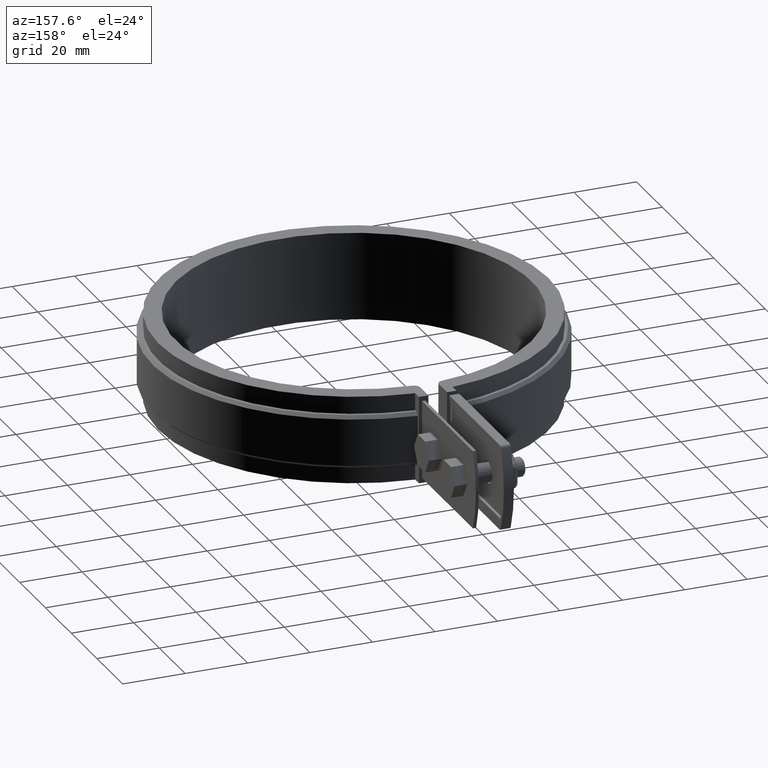
[diagram: clean part render]
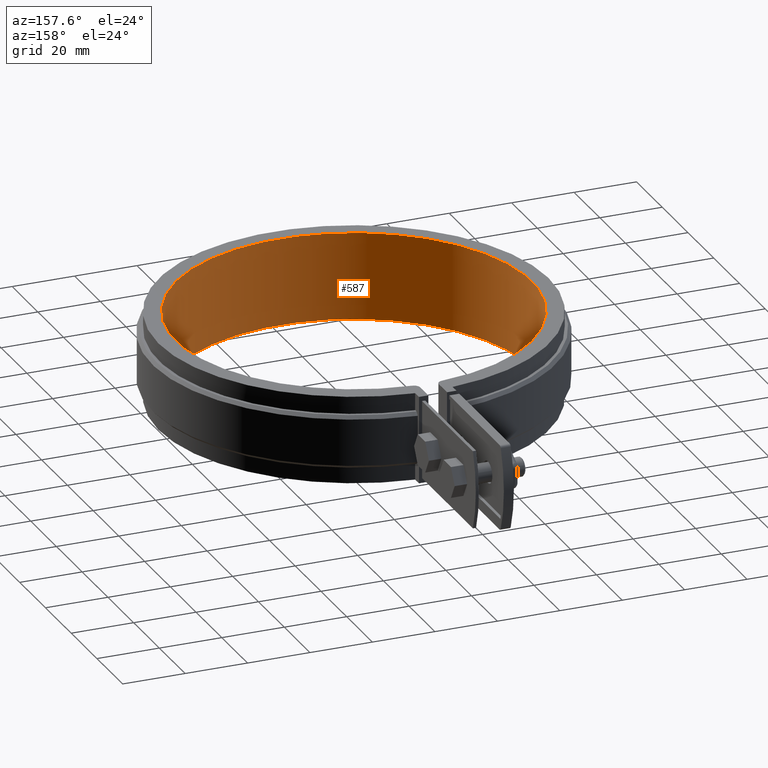
[diagram: same view with one face highlighted and labeled with its STEP entity id]
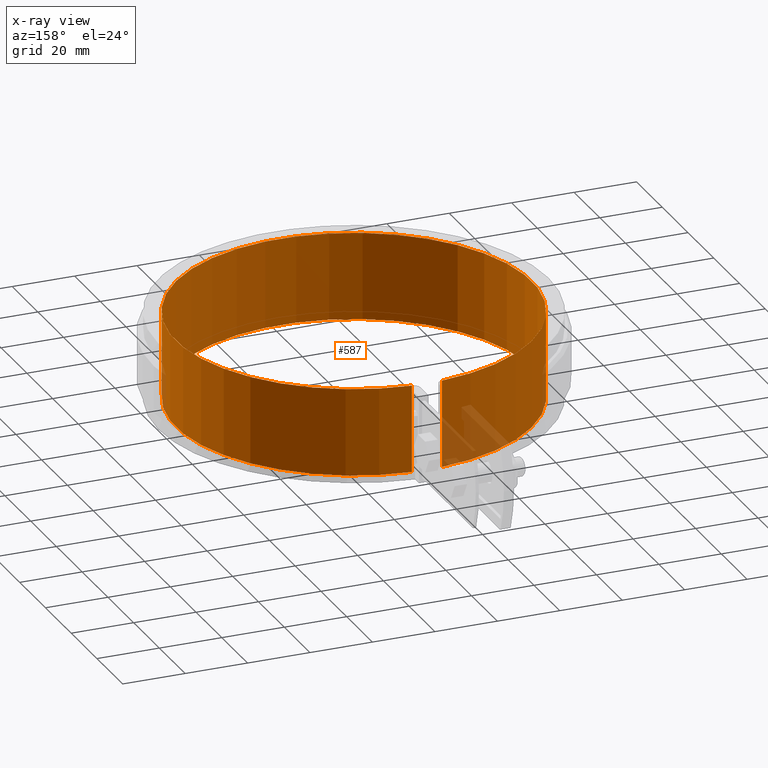
[diagram: x-ray of the same camera — body ghosted, the highlighted face saturated]
A machine part, auxiliary view. The second image highlights one B-rep face of the part: STEP entity #587.
The next image is the same camera in x-ray: the body ghosted, the highlighted face saturated — about 4% of this face is hidden behind the body in this view.
In plain terms, the highlighted cylindrical surface (partial cylindrical patch) has radius 57 mm, axis along (0, 0, -1).
Its self-contained STEP definition (entity closure, byte-faithful):
#587 = ADVANCED_FACE( '', ( #1088 ), #1089, .F. );
#1088 = FACE_OUTER_BOUND( '', #2407, .T. );
#1089 = CYLINDRICAL_SURFACE( '', #2408, 57.0000000000000 );
#2407 = EDGE_LOOP( '', ( #5125, #5126, #5127, #5128 ) );
#2408 = AXIS2_PLACEMENT_3D( '', #5129, #5130, #5131 );
#5125 = ORIENTED_EDGE( '', *, *, #7299, .F. );
#5126 = ORIENTED_EDGE( '', *, *, #7203, .F. );
#5127 = ORIENTED_EDGE( '', *, *, #7296, .T. );
#5128 = ORIENTED_EDGE( '', *, *, #7326, .T. );
#5129 = CARTESIAN_POINT( '', ( 2.60208521396521E-015, 3.46944695195361E-014, -14.0000000000000 ) );
#5130 = DIRECTION( '', ( 0.000000000000000, 0.000000000000000, -1.00000000000000 ) );
#5131 = DIRECTION( '', ( -0.0847457627118643, -0.996402607233835, 0.000000000000000 ) );
#7203 = EDGE_CURVE( '', #8334, #8330, #8336, .T. );
#7296 = EDGE_CURVE( '', #8334, #8484, #8486, .T. );
#7299 = EDGE_CURVE( '', #8330, #8490, #8491, .T. );
#7326 = EDGE_CURVE( '', #8484, #8490, #8526, .T. );
#8330 = VERTEX_POINT( '', #12085 );
#8334 = VERTEX_POINT( '', #12090 );
#8336 = LINE( '', #12092, #12093 );
#8484 = VERTEX_POINT( '', #12324 );
#8486 = CIRCLE( '', #12326, 57.0000000000000 );
#8490 = VERTEX_POINT( '', #12332 );
#8491 = CIRCLE( '', #12333, 57.0000000000000 );
#8526 = LINE( '', #12385, #12386 );
#12085 = CARTESIAN_POINT( '', ( 4.83050847457626, 56.7949486123287, 14.0000000000000 ) );
#12090 = CARTESIAN_POINT( '', ( 4.83050847457626, 56.7949486123287, -14.0000000000000 ) );
#12092 = CARTESIAN_POINT( '', ( 4.83050847457626, 56.7949486123287, -14.0000000000000 ) );
#12093 = VECTOR( '', #14103, 1000.00000000000 );
#12324 = CARTESIAN_POINT( '', ( -4.83050847457618, 56.7949486123287, -14.0000000000000 ) );
#12326 = AXIS2_PLACEMENT_3D( '', #14241, #14242, #14243 );
#12332 = CARTESIAN_POINT( '', ( -4.83050847457618, 56.7949486123287, 14.0000000000000 ) );
#12333 = AXIS2_PLACEMENT_3D( '', #14246, #14247, #14248 );
#12385 = CARTESIAN_POINT( '', ( -4.83050847457618, 56.7949486123287, -14.0000000000000 ) );
#12386 = VECTOR( '', #14293, 1000.00000000000 );
#14103 = DIRECTION( '', ( 0.000000000000000, 0.000000000000000, 1.00000000000000 ) );
#14241 = CARTESIAN_POINT( '', ( 2.60208521396521E-015, 3.46944695195361E-014, -14.0000000000000 ) );
#14242 = DIRECTION( '', ( 0.000000000000000, 0.000000000000000, -1.00000000000000 ) );
#14243 = DIRECTION( '', ( 1.00000000000000, 0.000000000000000, 0.000000000000000 ) );
#14246 = CARTESIAN_POINT( '', ( 2.60208521396521E-015, 3.46944695195361E-014, 14.0000000000000 ) );
#14247 = DIRECTION( '', ( 0.000000000000000, 0.000000000000000, -1.00000000000000 ) );
#14248 = DIRECTION( '', ( 1.00000000000000, 0.000000000000000, 0.000000000000000 ) );
#14293 = DIRECTION( '', ( 0.000000000000000, 0.000000000000000, 1.00000000000000 ) );